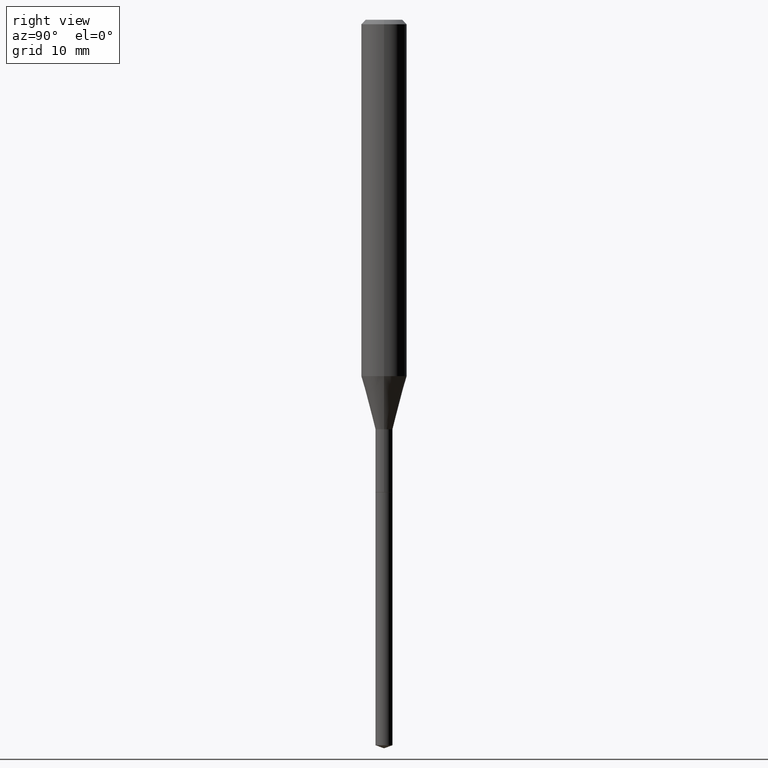
[diagram: clean part render]
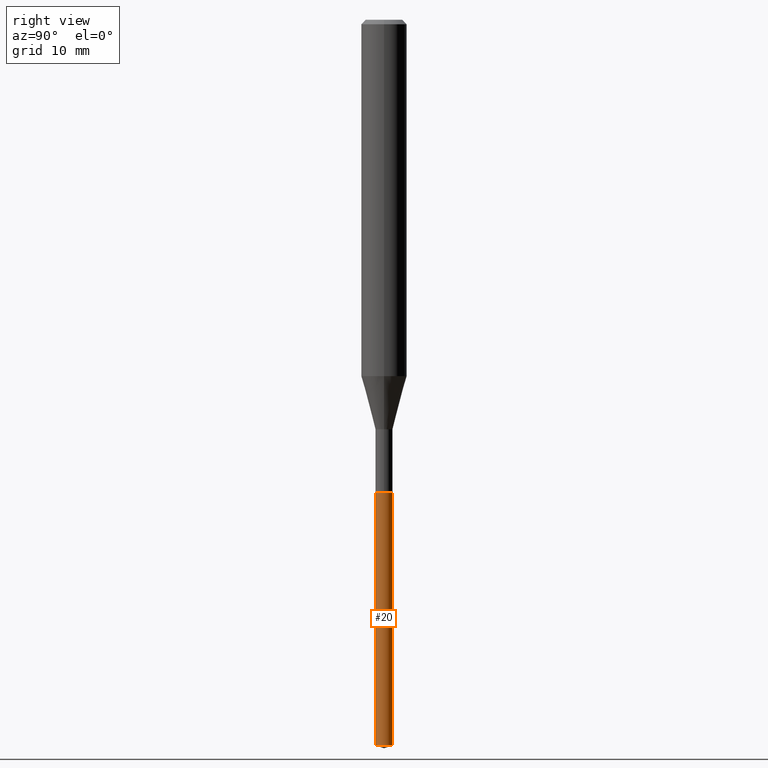
[diagram: same view with one face highlighted and labeled with its STEP entity id]
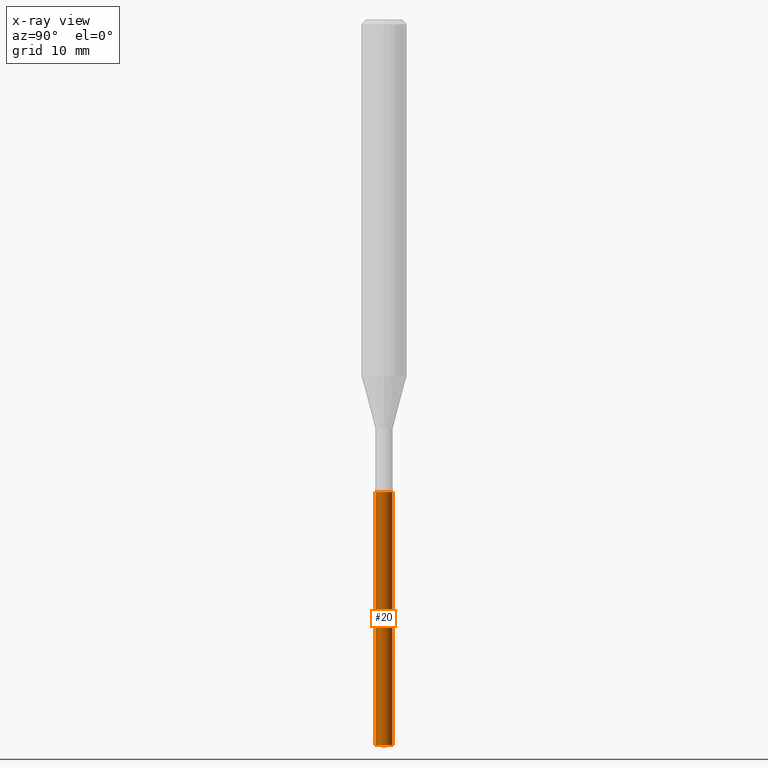
[diagram: x-ray of the same camera — body ghosted, the highlighted face saturated]
A machine part, right view. The second image highlights one B-rep face of the part: STEP entity #20.
The next image is the same camera in x-ray: the body ghosted, the highlighted face saturated — about 0% of this face is hidden behind the body in this view.
In plain terms, the highlighted cylindrical surface (edge-blend (fillet) strip) has radius 0.7506 mm, axis along (-0, 0, 1).
Its self-contained STEP definition (entity closure, byte-faithful):
#1 = ORIENTED_EDGE ( 'NONE', *, *, #80, .T. ) ;
#8 = VERTEX_POINT ( 'NONE', #231 ) ;
#20 = ADVANCED_FACE ( 'NONE', ( #378 ), #415, .T. ) ;
#43 = DIRECTION ( 'NONE',  ( -6.982962677686265922E-15, -1.000000000000000000, 0.000000000000000000 ) ) ;
#53 = ORIENTED_EDGE ( 'NONE', *, *, #106, .F. ) ;
#67 = CARTESIAN_POINT ( 'NONE',  ( 2.099653784171709626E-16, 0.02954999999999124646, -2.508944679577433501 ) ) ;
#80 = EDGE_CURVE ( 'NONE', #204, #240, #419, .T. ) ;
#82 = VERTEX_POINT ( 'NONE', #114 ) ;
#85 = CARTESIAN_POINT ( 'NONE',  ( 3.995651482425893567E-29, -5.704731359535814187E-15, -1.633899999999999686 ) ) ;
#96 = CARTESIAN_POINT ( 'NONE',  ( 2.099653784171495155E-16, 0.02954999999999429611, -1.633899999999999686 ) ) ;
#106 = EDGE_CURVE ( 'NONE', #204, #82, #325, .T. ) ;
#111 = CIRCLE ( 'NONE', #190, 0.02954999999999999988 ) ;
#114 = CARTESIAN_POINT ( 'NONE',  ( -2.063465471255892306E-16, -0.02955000000000570365, -1.633899999999999686 ) ) ;
#117 = AXIS2_PLACEMENT_3D ( 'NONE', #340, #149, #305 ) ;
#149 = DIRECTION ( 'NONE',  ( -2.444945154218927831E-29, 3.492231238263175322E-15, 1.000000000000000000 ) ) ;
#179 = CARTESIAN_POINT ( 'NONE',  ( 3.995651482425893567E-29, -5.704731359535814187E-15, -1.633899999999999686 ) ) ;
#190 = AXIS2_PLACEMENT_3D ( 'NONE', #179, #489, #329 ) ;
#204 = VERTEX_POINT ( 'NONE', #431 ) ;
#206 = DIRECTION ( 'NONE',  ( -2.444945154218927831E-29, 3.492231238263175716E-15, 1.000000000000000000 ) ) ;
#231 = CARTESIAN_POINT ( 'NONE',  ( 2.099653784171710859E-16, 0.02954999999999429611, -1.633899999999999686 ) ) ;
#232 = VECTOR ( 'NONE', #206, 39.37007874015748143 ) ;
#235 = DIRECTION ( 'NONE',  ( -2.444945154218927831E-29, 3.492231238263175322E-15, 1.000000000000000000 ) ) ;
#240 = VERTEX_POINT ( 'NONE', #67 ) ;
#242 = VECTOR ( 'NONE', #321, 39.37007874015748143 ) ;
#246 = CARTESIAN_POINT ( 'NONE',  ( -2.063465471255892306E-16, -0.02955000000000570365, -1.633899999999999686 ) ) ;
#297 = EDGE_CURVE ( 'NONE', #82, #8, #111, .T. ) ;
#305 = DIRECTION ( 'NONE',  ( -6.982962677686265922E-15, -1.000000000000000000, 0.000000000000000000 ) ) ;
#314 = ORIENTED_EDGE ( 'NONE', *, *, #475, .T. ) ;
#321 = DIRECTION ( 'NONE',  ( -2.444945154218927831E-29, 3.492231238263175716E-15, 1.000000000000000000 ) ) ;
#325 = LINE ( 'NONE', #246, #242 ) ;
#329 = DIRECTION ( 'NONE',  ( -6.982962677686265922E-15, -1.000000000000000000, 0.000000000000000000 ) ) ;
#340 = CARTESIAN_POINT ( 'NONE',  ( 6.135087731483795032E-29, -8.760589724432118638E-15, -2.508944679577433501 ) ) ;
#350 = ORIENTED_EDGE ( 'NONE', *, *, #297, .F. ) ;
#365 = AXIS2_PLACEMENT_3D ( 'NONE', #85, #235, #43 ) ;
#378 = FACE_OUTER_BOUND ( 'NONE', #434, .T. ) ;
#389 = LINE ( 'NONE', #96, #232 ) ;
#415 = CYLINDRICAL_SURFACE ( 'NONE', #365, 0.02954999999999999988 ) ;
#419 = CIRCLE ( 'NONE', #117, 0.02954999999999999988 ) ;
#431 = CARTESIAN_POINT ( 'NONE',  ( -2.063465471255678821E-16, -0.02955000000000876370, -2.508944679577433501 ) ) ;
#434 = EDGE_LOOP ( 'NONE', ( #1, #314, #350, #53 ) ) ;
#475 = EDGE_CURVE ( 'NONE', #240, #8, #389, .T. ) ;
#489 = DIRECTION ( 'NONE',  ( -2.444945154218927831E-29, 3.492231238263175322E-15, 1.000000000000000000 ) ) ;